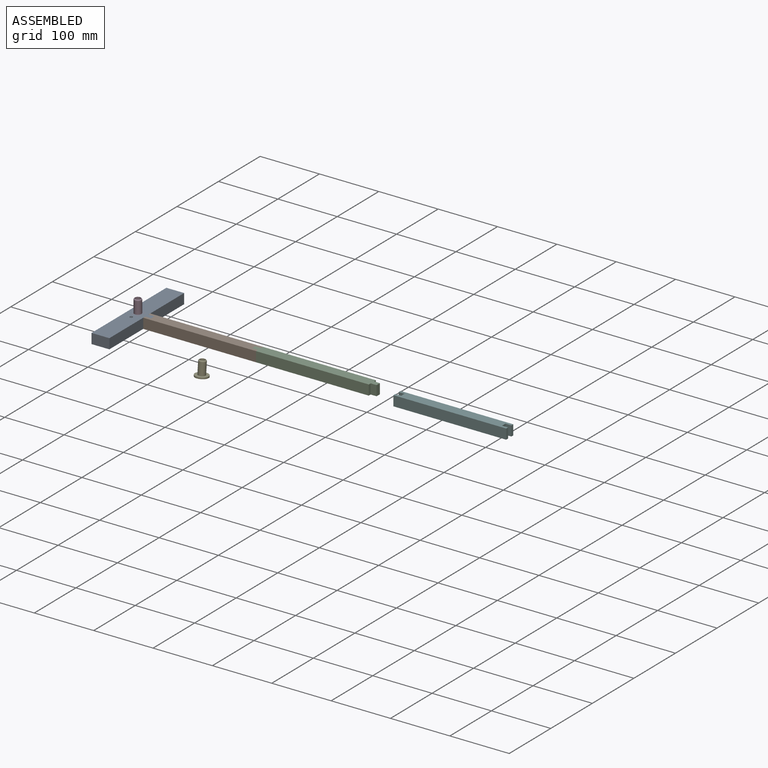
[diagram: assembled view]
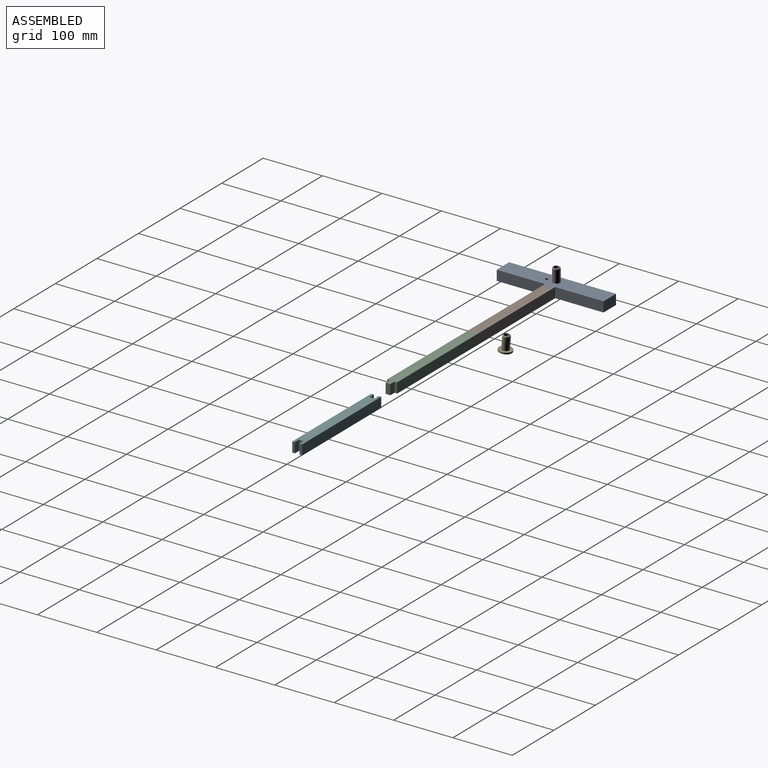
[diagram: assembled view, second angle]
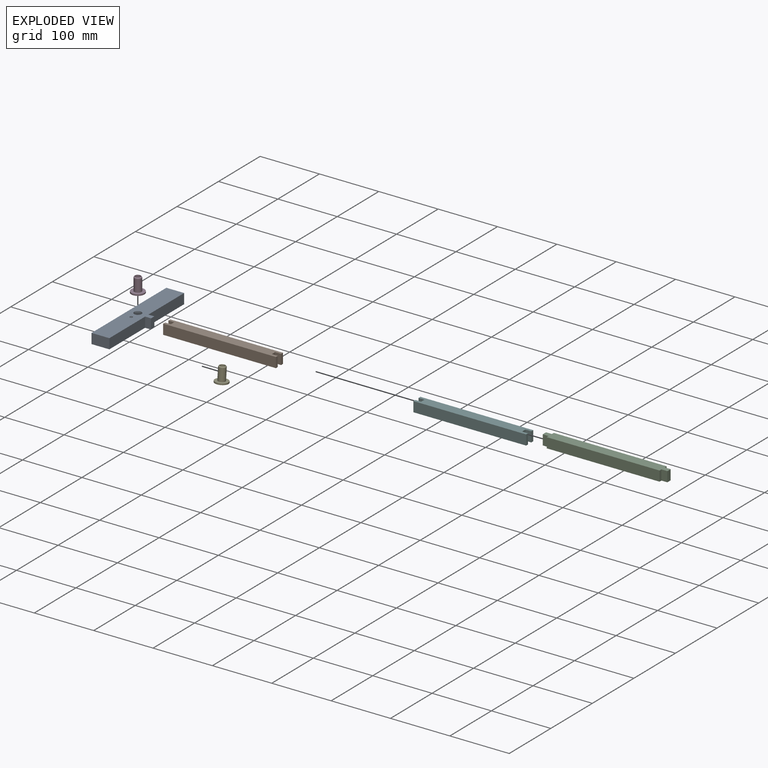
[diagram: exploded view]
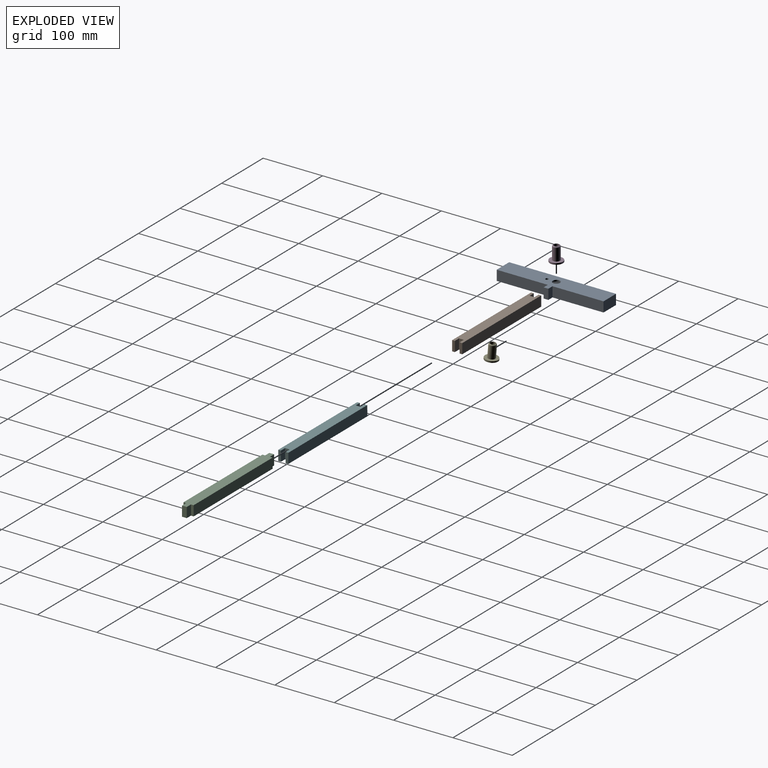
[diagram: exploded view, second angle]
ASSEMBLY  parts=6 mates=3
PART A: 21 faces, bbox 40x180x17 mm
  f0: plane 180x40mm, normal (0,0,-1), area 1075mm2, adj f1,f2,f3,f4,f5,f6,f7,f8
  f1: plane 86x17mm, normal (1,0,0), area 1462mm2, adj f0,f2,f8,f9
  f2: plane 17x10mm, normal (0,-1,0), area 170mm2, adj f0,f1,f3,f9
  f3: plane 17x8mm, normal (1,0,0), area 136mm2, adj f0,f2,f4,f9
  f4: plane 17x10mm, normal (0,1,0), area 170mm2, adj f0,f3,f5,f9
  f5: plane 86x17mm, normal (1,0,0), area 1462mm2, adj f0,f4,f6,f9
  f6: plane 30x17mm, normal (0,1,0), area 510mm2, adj f0,f5,f7,f9
  f7: plane 180x17mm, normal (-1,0,0), area 3060mm2, adj f0,f6,f8,f9
  f8: plane 30x17mm, normal (0,-1,0), area 510mm2, adj f0,f1,f7,f9
  f9: plane 180x40mm, normal (0,0,1), area 5339.6mm2, adj f1,f2,f3,f4,f5,f6,f7,f8
  f10: plane 86x14.5mm, normal (-1,0,0), area 1247mm2, adj f0,f11,f17,f18
  f11: plane 14.5x10mm, normal (0,1,0), area 145mm2, adj f0,f10,f12,f18
  f12: plane 14.5x3mm, normal (-1,0,0), area 43.5mm2, adj f0,f11,f13,f18
  f13: plane 14.5x10mm, normal (0,-1,0), area 145mm2, adj f0,f12,f14,f18
  f14: plane 86x14.5mm, normal (-1,0,0), area 1247mm2, adj f0,f13,f15,f18
  f15: plane 25x14.5mm, normal (0,-1,0), area 362.5mm2, adj f0,f14,f16,f18
  f16: plane 175x14.5mm, normal (1,0,0), area 2537.5mm2, adj f0,f15,f17,f18
  f17: plane 25x14.5mm, normal (0,1,0), area 362.5mm2, adj f0,f10,f16,f18
  f18: plane 175x35mm, normal (0,0,-1), area 4264.6mm2, adj f10,f11,f12,f13,f14,f15,f16,f17
  f19: cylinder r=2.5mm len=5mm, axis (0,0,1), area 39.3mm2, adj f9,f18
  f20: cylinder r=6.2mm len=12.4mm, axis (0,0,1), area 97.4mm2, adj f9,f18
PART B: 19 faces, bbox 190x17x17 mm
  f0: plane 190x17mm, normal (0,0,1), area 1090mm2, adj f1,f2,f4,f5,f6,f7,f8,f9
  f1: plane 17x4.5mm, normal (-1,0,0), area 76.5mm2, adj f0,f3,f6,f12
  f2: plane 17x4.5mm, normal (1,0,0), area 76.5mm2, adj f0,f3,f6,f10
  f3: plane 190x17mm, normal (0,0,-1), area 3070mm2, adj f1,f2,f4,f5,f6,f7,f8,f9
  f4: plane 190x17mm, normal (0,1,0), area 3230mm2, adj f0,f3,f5,f7
  f5: plane 17x4.5mm, normal (-1,0,0), area 76.5mm2, adj f0,f3,f4,f11
  f6: plane 190x17mm, normal (0,-1,0), area 3230mm2, adj f0,f1,f2,f3
  f7: plane 17x4.5mm, normal (1,0,0), area 76.5mm2, adj f0,f3,f4,f8
  f8: plane 17x10mm, normal (0,-1,0), area 170mm2, adj f0,f3,f7,f9
  f9: plane 17x8mm, normal (1,0,0), area 136mm2, adj f0,f3,f8,f10
  f10: plane 17x10mm, normal (0,1,0), area 170mm2, adj f0,f2,f3,f9
  f11: plane 17x10mm, normal (0,-1,0), area 170mm2, adj f0,f3,f5,f13
  f12: plane 17x10mm, normal (0,1,0), area 170mm2, adj f0,f1,f3,f13
  f13: plane 17x8mm, normal (-1,0,0), area 136mm2, adj f0,f3,f11,f12
  f14: plane 165x12mm, normal (0,0,1), area 1980mm2, adj f15,f16,f17,f18
  f15: plane 165x14.5mm, normal (0,-1,0), area 2392.5mm2, adj f0,f14,f17,f18
  f16: plane 165x14.5mm, normal (0,1,0), area 2392.5mm2, adj f0,f14,f17,f18
  f17: plane 14.5x12mm, normal (-1,0,0), area 174mm2, adj f0,f14,f15,f16
  f18: plane 14.5x12mm, normal (1,0,0), area 174mm2, adj f0,f14,f15,f16
PART C: 29 faces, bbox 210x17x17 mm
  f0: plane 210x17mm, normal (0,0,1), area 1125mm2, adj f1,f2,f3,f4,f5,f6,f8,f9
  f1: plane 17x4.5mm, normal (-1,0,0), area 76.5mm2, adj f0,f3,f7,f16
  f2: plane 17x4.5mm, normal (1,0,0), area 76.5mm2, adj f0,f3,f7,f14
  f3: plane 190x17mm, normal (0,1,0), area 3230mm2, adj f0,f1,f2,f7
  f4: plane 17x4.5mm, normal (-1,0,0), area 76.5mm2, adj f0,f5,f7,f17
  f5: plane 190x17mm, normal (0,-1,0), area 3230mm2, adj f0,f4,f6,f7
  f6: plane 17x4.5mm, normal (1,0,0), area 76.5mm2, adj f0,f5,f7,f13
  f7: plane 210x17mm, normal (0,0,-1), area 3390mm2, adj f1,f2,f3,f4,f5,f6,f13,f14
  f8: plane 185x14.5mm, normal (0,-1,0), area 2682.5mm2, adj f0,f9,f11,f12
  f9: plane 14.5x12mm, normal (1,0,0), area 174mm2, adj f0,f8,f10,f12
  f10: plane 185x14.5mm, normal (0,1,0), area 2682.5mm2, adj f0,f9,f11,f12
  f11: plane 14.5x12mm, normal (-1,0,0), area 174mm2, adj f0,f8,f10,f12
  f12: plane 185x12mm, normal (0,0,1), area 2220mm2, adj f8,f9,f10,f11
  f13: plane 17x10mm, normal (0,-1,0), area 170mm2, adj f0,f6,f7,f15
  f14: plane 17x10mm, normal (0,1,0), area 170mm2, adj f0,f2,f7,f15
  f15: plane 17x8mm, normal (1,0,0), area 136mm2, adj f0,f7,f13,f14
  f16: plane 17x10mm, normal (0,1,0), area 170mm2, adj f0,f1,f7,f18
  f17: plane 17x10mm, normal (0,-1,0), area 170mm2, adj f0,f4,f7,f18
  f18: plane 17x8mm, normal (-1,0,0), area 136mm2, adj f0,f7,f16,f17
  f19: plane 14.5x3mm, normal (-1,0,0), area 43.5mm2, adj f0,f20,f21,f22
  f20: plane 7.5x3mm, normal (0,0,1), area 22.5mm2, adj f19,f21,f22,f23
  f21: plane 14.5x7.5mm, normal (0,-1,0), area 108.7mm2, adj f0,f19,f20,f23
  f22: plane 14.5x7.5mm, normal (0,1,0), area 108.7mm2, adj f0,f19,f20,f23
  f23: plane 14.5x3mm, normal (1,0,0), area 43.5mm2, adj f0,f20,f21,f22
  f24: plane 14.5x3mm, normal (-1,0,0), area 43.5mm2, adj f0,f25,f26,f28
  f25: plane 14.5x7.5mm, normal (0,-1,0), area 108.7mm2, adj f0,f24,f27,f28
  f26: plane 14.5x7.5mm, normal (0,1,0), area 108.7mm2, adj f0,f24,f27,f28
  f27: plane 14.5x3mm, normal (1,0,0), area 43.5mm2, adj f0,f25,f26,f28
  f28: plane 7.5x3mm, normal (0,0,1), area 22.5mm2, adj f24,f25,f26,f27
PART D: 6 faces, bbox 22x22x25.1 mm
  f0: cylinder r=11mm len=22mm, axis (0,0,-1), area 172.8mm2, adj f1,f2
  f1: plane 22x22mm, normal (0,0,1), area 316.5mm2, adj f0,f4
  f2: plane 22x22mm, normal (0,0,-1), area 267mm2, adj f0,f3
  f3: cylinder r=6mm len=20.56mm, axis (0,0,1), area 775.2mm2, adj f2,f5
  f4: cylinder r=4.5mm len=25mm, axis (0,0,-1), area 706.9mm2, adj f1,f5
  f5: torus R=4mm, axis (0,0,-1), area 90.6mm2, adj f3,f4
PART E: same geometry as D
PART F: same geometry as B
PLACE A rot(axis=(-1,0,0),0deg) t=(-112.45,-4.65,22.4)mm
PLACE B rot(axis=(1,0,0),180deg) t=(-2.45,-4.65,39.4)mm
PLACE C rot(axis=(1,0,0),180deg) t=(187.55,-4.65,39.4)mm
PLACE D rot(axis=(1,0,0),180deg) t=(-112.45,-4.65,39.4)mm
PLACE E rot(axis=(1,0,0),175deg) t=(0,-11.52,-21.98)mm
PLACE F rot(axis=(-1,0,0),179.9deg) t=(418.03,-3.2,33.41)mm
MATE fastened D.f0 <-> A.f20  axis (0,0,1) through (-112.45,-4.65,39.4)mm
MATE fastened C.f18 <-> B.f9  axis (-1,0,0) through (82.55,-4.65,30.9)mm
MATE fastened A.f3 <-> B.f13  axis (1,0,0) through (-87.45,-4.65,30.9)mm
